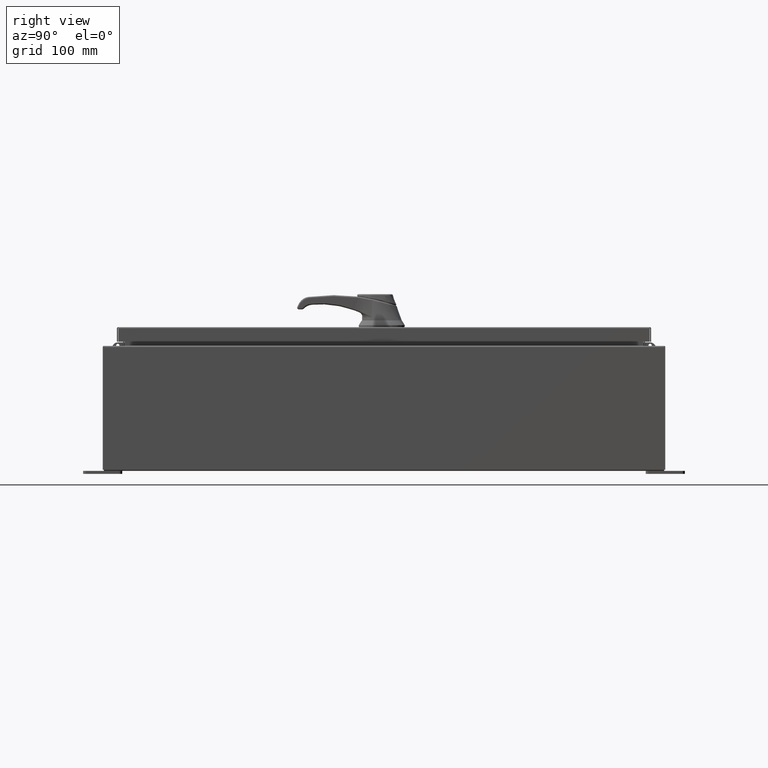
[diagram: clean part render]
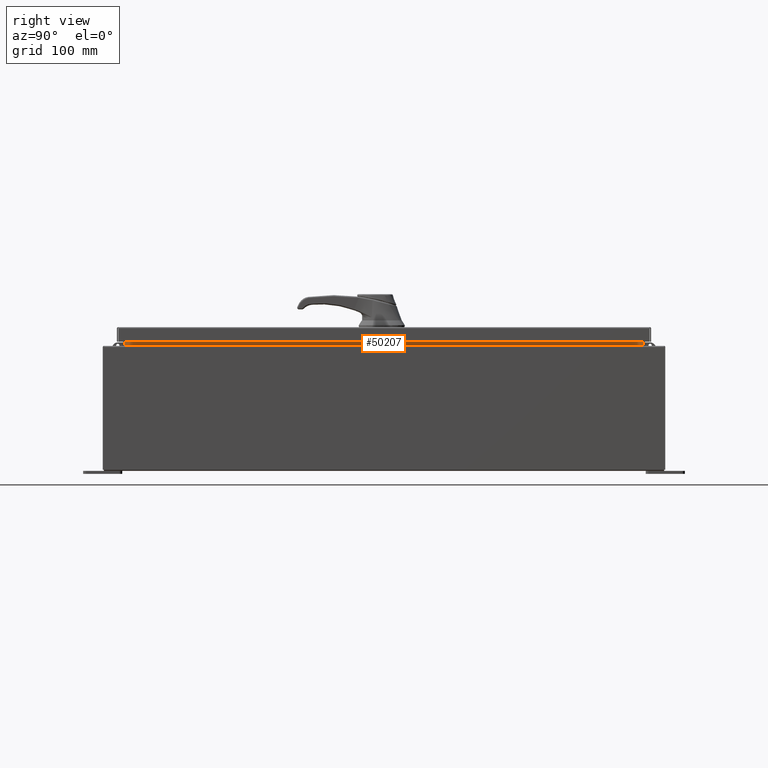
[diagram: same view with one face highlighted and labeled with its STEP entity id]
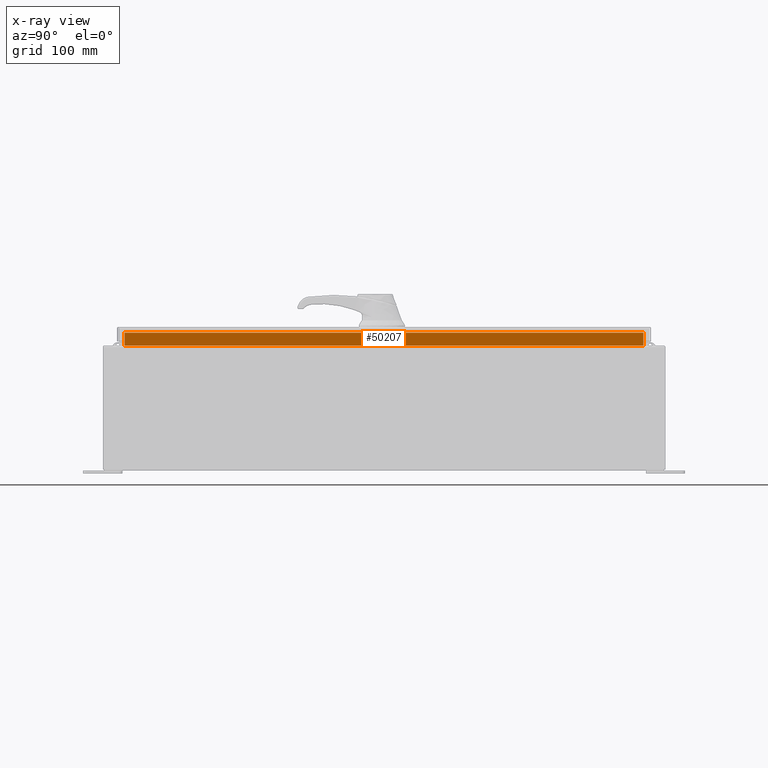
[diagram: x-ray of the same camera — body ghosted, the highlighted face saturated]
A machine part, right view. The second image highlights one B-rep face of the part: STEP entity #50207.
The next image is the same camera in x-ray: the body ghosted, the highlighted face saturated — about 0% of this face is hidden behind the body in this view.
In plain terms, the highlighted planar face has unit normal (1, 0, -0).
Its self-contained STEP definition (entity closure, byte-faithful):
#3284 = ORIENTED_EDGE ( 'NONE', *, *, #44772, .F. ) ;
#6637 = CARTESIAN_POINT ( 'NONE',  ( 10.69970000000001100, 0.0000000000000000000, -2.527176394925714100E-014 ) ) ;
#7508 = DIRECTION ( 'NONE',  ( 2.361913319930201500E-015, -0.0000000000000000000, 1.000000000000000000 ) ) ;
#7641 = DIRECTION ( 'NONE',  ( -2.361913319930196000E-015, -0.0000000000000000000, -1.000000000000000000 ) ) ;
#10005 = EDGE_CURVE ( 'NONE', #15608, #73492, #69842, .T. ) ;
#12583 = VERTEX_POINT ( 'NONE', #74964 ) ;
#15608 = VERTEX_POINT ( 'NONE', #37560 ) ;
#20476 = EDGE_LOOP ( 'NONE', ( #67433, #39580, #3284, #31400 ) ) ;
#21400 = AXIS2_PLACEMENT_3D ( 'NONE', #6637, #101873, #44921 ) ;
#21571 = VECTOR ( 'NONE', #56352, 39.37007874015748100 ) ;
#31400 = ORIENTED_EDGE ( 'NONE', *, *, #75785, .F. ) ;
#35375 = PLANE ( 'NONE',  #21400 ) ;
#35600 = EDGE_CURVE ( 'NONE', #12583, #15608, #49805, .T. ) ;
#37488 = LINE ( 'NONE', #74049, #110335 ) ;
#37560 = CARTESIAN_POINT ( 'NONE',  ( 10.69970000000003400, 16.59375000000000000, 8.762900000000007200 ) ) ;
#39580 = ORIENTED_EDGE ( 'NONE', *, *, #35600, .F. ) ;
#42773 = VECTOR ( 'NONE', #55789, 39.37007874015748100 ) ;
#44772 = EDGE_CURVE ( 'NONE', #87650, #12583, #37488, .T. ) ;
#44921 = DIRECTION ( 'NONE',  ( -2.361913319930196000E-015, 0.0000000000000000000, -1.000000000000000000 ) ) ;
#49805 = LINE ( 'NONE', #94632, #21571 ) ;
#50207 = ADVANCED_FACE ( 'NONE', ( #89963 ), #35375, .T. ) ;
#55045 = CARTESIAN_POINT ( 'NONE',  ( 10.69970000000003000, 16.59375000000000000, 7.925300000000007100 ) ) ;
#55789 = DIRECTION ( 'NONE',  ( 6.585245634444928200E-017, -1.000000000000000000, 1.975573690333478700E-016 ) ) ;
#56352 = DIRECTION ( 'NONE',  ( 0.0000000000000000000, 1.000000000000000000, 0.0000000000000000000 ) ) ;
#67433 = ORIENTED_EDGE ( 'NONE', *, *, #10005, .F. ) ;
#69842 = LINE ( 'NONE', #55045, #117419 ) ;
#73492 = VERTEX_POINT ( 'NONE', #88772 ) ;
#74049 = CARTESIAN_POINT ( 'NONE',  ( 10.69970000000003200, -16.59375000000000000, 8.850600000000007100 ) ) ;
#74964 = CARTESIAN_POINT ( 'NONE',  ( 10.69970000000003200, -16.59375000000000000, 8.762900000000007200 ) ) ;
#75785 = EDGE_CURVE ( 'NONE', #73492, #87650, #90322, .T. ) ;
#87650 = VERTEX_POINT ( 'NONE', #118569 ) ;
#88772 = CARTESIAN_POINT ( 'NONE',  ( 10.69970000000003000, 16.59375000000000000, 7.938300000000010600 ) ) ;
#89963 = FACE_OUTER_BOUND ( 'NONE', #20476, .T. ) ;
#90322 = LINE ( 'NONE', #112758, #42773 ) ;
#94632 = CARTESIAN_POINT ( 'NONE',  ( 10.69970000000003400, -16.59375000000000000, 8.762900000000007200 ) ) ;
#101873 = DIRECTION ( 'NONE',  ( 1.000000000000000000, 0.0000000000000000000, -2.361913319930196000E-015 ) ) ;
#110335 = VECTOR ( 'NONE', #7508, 39.37007874015748100 ) ;
#112758 = CARTESIAN_POINT ( 'NONE',  ( 10.69970000000003000, 16.59375000000000000, 7.938300000000007900 ) ) ;
#117419 = VECTOR ( 'NONE', #7641, 39.37007874015748100 ) ;
#118569 = CARTESIAN_POINT ( 'NONE',  ( 10.69970000000003000, -16.59375000000000000, 7.938300000000010600 ) ) ;